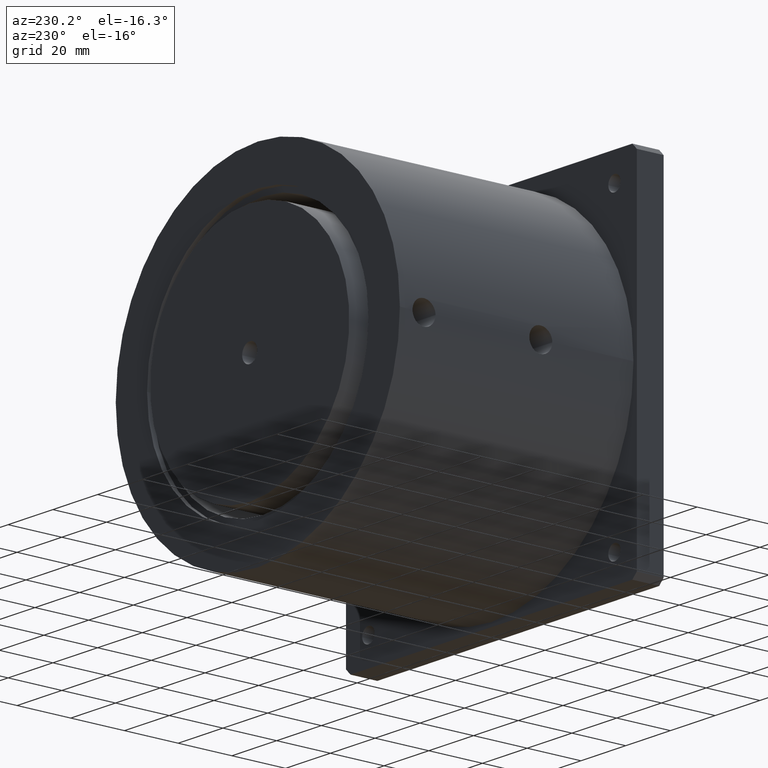
[diagram: clean part render]
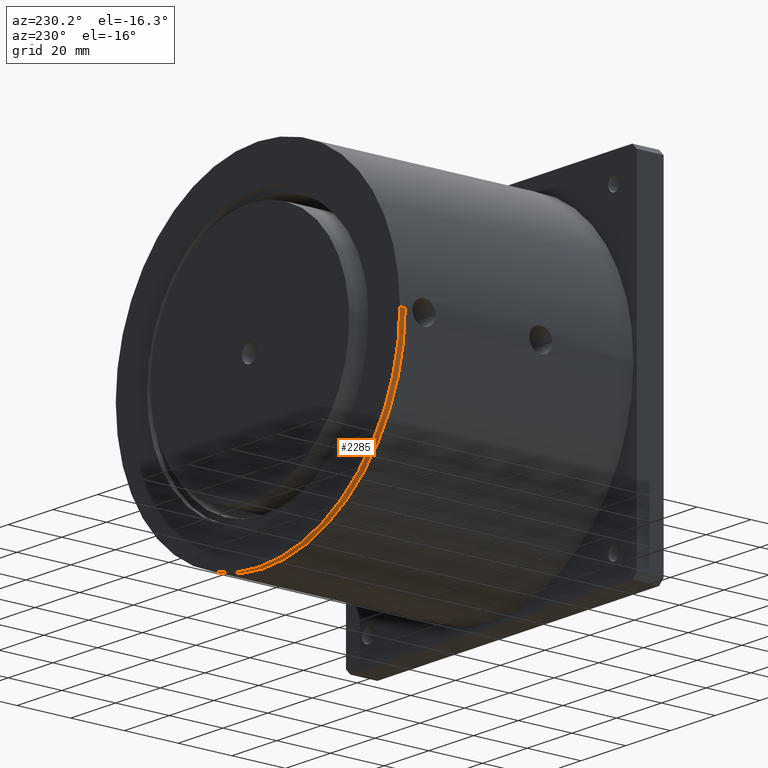
[diagram: same view with one face highlighted and labeled with its STEP entity id]
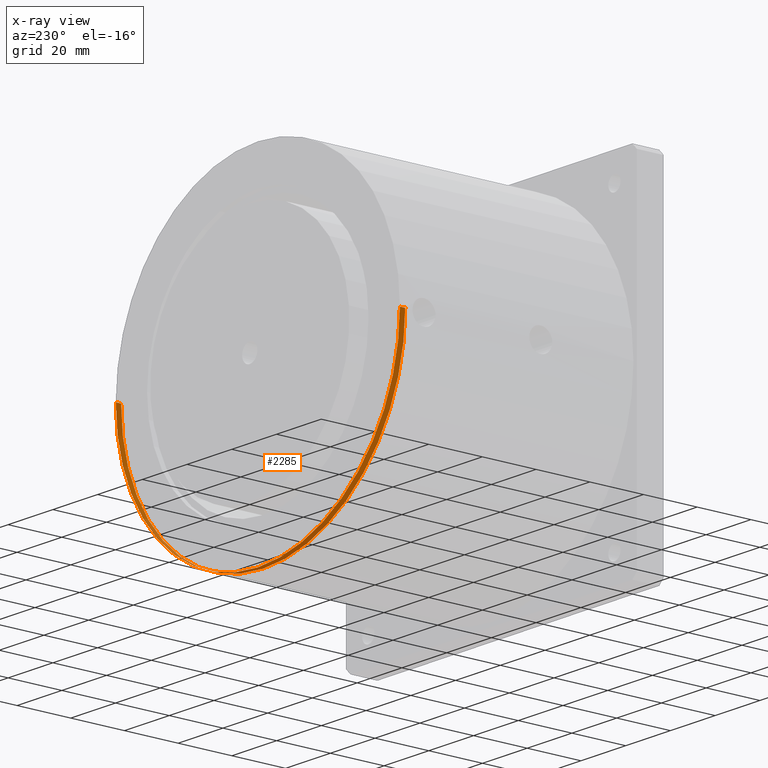
[diagram: x-ray of the same camera — body ghosted, the highlighted face saturated]
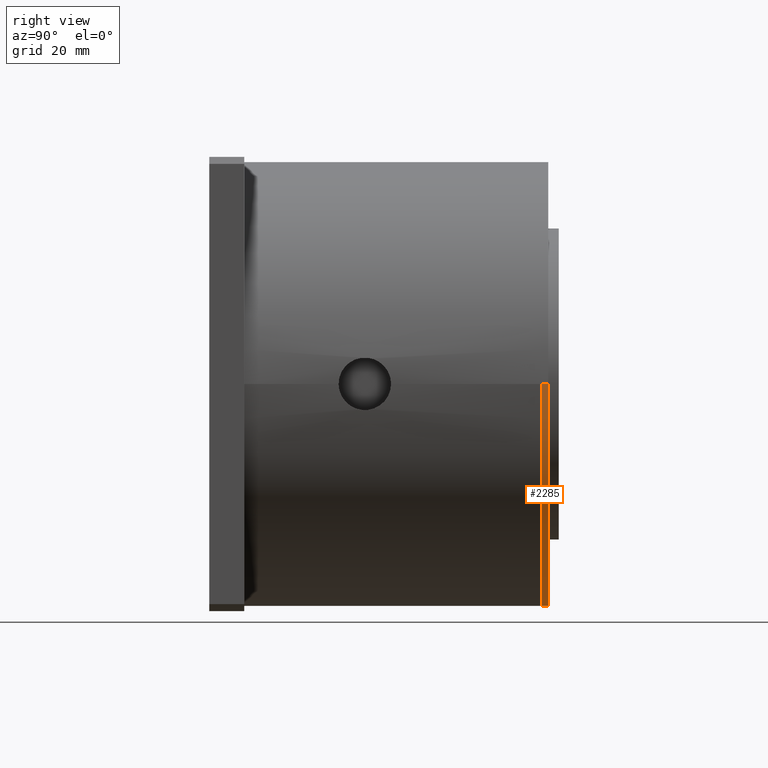
[diagram: same view with one face highlighted and labeled with its STEP entity id]
A machine part, auxiliary view. The second image highlights one B-rep face of the part: STEP entity #2285.
The next image is the same camera in x-ray: the body ghosted, the highlighted face saturated — about 0% of this face is hidden behind the body in this view.
A second angle (right view) of the same face is appended — the face is thin or edge-on in the first view.
In plain terms, the highlighted cylindrical surface (partial cylindrical patch) has radius 63.5 mm, axis along (0, 1, 0).
Its self-contained STEP definition (entity closure, byte-faithful):
#2114=CARTESIAN_POINT('',(0.E0,0.E0,0.E0));
#2115=DIRECTION('',(0.E0,0.E0,1.E0));
#2116=DIRECTION('',(-1.E0,0.E0,0.E0));
#2117=AXIS2_PLACEMENT_3D('',#2114,#2115,#2116);
#2160=CARTESIAN_POINT('',(0.E0,0.E0,2.E0));
#2161=DIRECTION('',(0.E0,0.E0,1.E0));
#2162=DIRECTION('',(-1.E0,0.E0,0.E0));
#2163=AXIS2_PLACEMENT_3D('',#2160,#2161,#2162);
#2168=DIRECTION('',(0.E0,0.E0,1.E0));
#2169=VECTOR('',#2168,2.E0);
#2170=CARTESIAN_POINT('',(6.35E1,0.E0,0.E0));
#2171=LINE('',#2170,#2169);
#2175=DIRECTION('',(0.E0,0.E0,1.E0));
#2176=VECTOR('',#2175,2.E0);
#2177=CARTESIAN_POINT('',(-6.35E1,0.E0,0.E0));
#2178=LINE('',#2177,#2176);
#2186=CARTESIAN_POINT('',(6.35E1,0.E0,0.E0));
#2187=CARTESIAN_POINT('',(-6.35E1,1.555301434917E-14,0.E0));
#2188=VERTEX_POINT('',#2186);
#2189=VERTEX_POINT('',#2187);
#2194=CARTESIAN_POINT('',(6.35E1,0.E0,2.E0));
#2195=CARTESIAN_POINT('',(-6.35E1,1.555301434917E-14,2.E0));
#2196=VERTEX_POINT('',#2194);
#2197=VERTEX_POINT('',#2195);
#2274=CARTESIAN_POINT('',(0.E0,0.E0,0.E0));
#2275=DIRECTION('',(0.E0,0.E0,1.E0));
#2276=DIRECTION('',(1.E0,0.E0,0.E0));
#2277=AXIS2_PLACEMENT_3D('',#2274,#2275,#2276);
#2278=CYLINDRICAL_SURFACE('',#2277,6.35E1);
#2279=ORIENTED_EDGE('',*,*,#2205,.F.);
#2280=ORIENTED_EDGE('',*,*,#2269,.T.);
#2281=ORIENTED_EDGE('',*,*,#2251,.T.);
#2282=ORIENTED_EDGE('',*,*,#2266,.F.);
#2283=EDGE_LOOP('',(#2279,#2280,#2281,#2282));
#2284=FACE_OUTER_BOUND('',#2283,.F.);
#2118=CIRCLE('',#2117,6.35E1);
#2164=CIRCLE('',#2163,6.35E1);
#2205=EDGE_CURVE('',#2189,#2188,#2118,.T.);
#2251=EDGE_CURVE('',#2197,#2196,#2164,.T.);
#2266=EDGE_CURVE('',#2188,#2196,#2171,.T.);
#2269=EDGE_CURVE('',#2189,#2197,#2178,.T.);
#2285=ADVANCED_FACE('',(#2284),#2278,.T.);